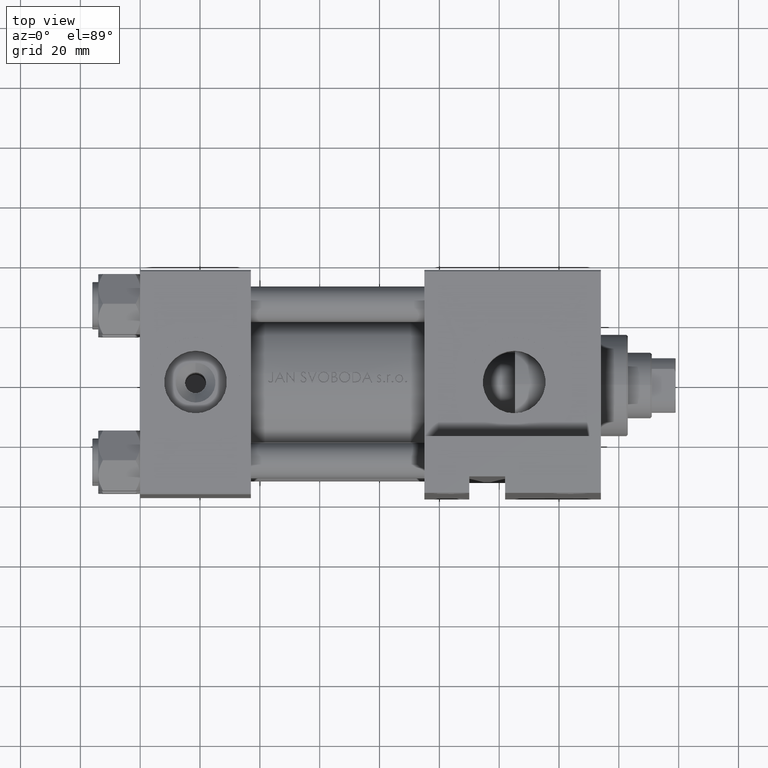
[diagram: clean part render]
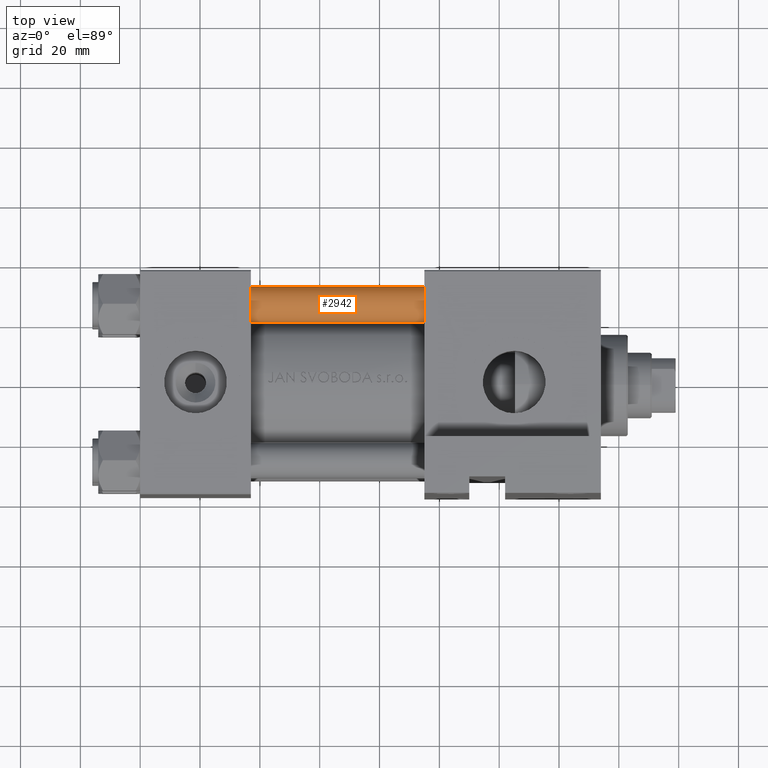
[diagram: same view with one face highlighted and labeled with its STEP entity id]
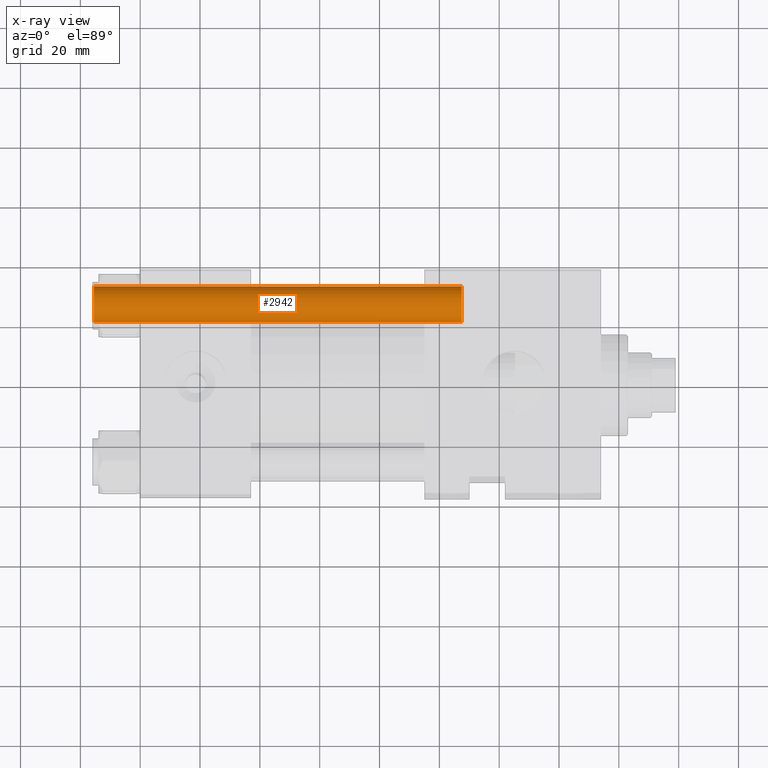
[diagram: x-ray of the same camera — body ghosted, the highlighted face saturated]
A machine part, top view. The second image highlights one B-rep face of the part: STEP entity #2942.
The next image is the same camera in x-ray: the body ghosted, the highlighted face saturated — about 0% of this face is hidden behind the body in this view.
In plain terms, the highlighted cylindrical surface (edge-blend (fillet) strip) has radius 6 mm, axis along (1, -0, 0).
Its self-contained STEP definition (entity closure, byte-faithful):
#202 = VECTOR ( 'NONE', #33020, 1000.000000000000000 ) ;
#2630 = LINE ( 'NONE', #17718, #202 ) ;
#2942 = ADVANCED_FACE ( 'NONE', ( #26237 ), #30513, .T. ) ;
#4841 = CARTESIAN_POINT ( 'NONE',  ( 0.000000000000000000, 0.000000000000000000, 123.5000000000000426 ) ) ;
#8397 = EDGE_CURVE ( 'NONE', #27512, #25775, #8506, .T. ) ;
#8506 = CIRCLE ( 'NONE', #43792, 6.000000000000000888 ) ;
#11180 = CARTESIAN_POINT ( 'NONE',  ( 0.000000000000000000, 0.000000000000000000, 124.0000000000000000 ) ) ;
#11444 = CARTESIAN_POINT ( 'NONE',  ( 0.000000000000000000, 0.000000000000000000, 0.4999999999999865663 ) ) ;
#11683 = DIRECTION ( 'NONE',  ( -0.000000000000000000, -0.000000000000000000, -1.000000000000000000 ) ) ;
#13597 = CIRCLE ( 'NONE', #34441, 6.000000000000000888 ) ;
#15914 = DIRECTION ( 'NONE',  ( 1.000000000000000000, 0.000000000000000000, 0.000000000000000000 ) ) ;
#16319 = ORIENTED_EDGE ( 'NONE', *, *, #23638, .T. ) ;
#17214 = VERTEX_POINT ( 'NONE', #22162 ) ;
#17718 = CARTESIAN_POINT ( 'NONE',  ( 6.000000000000000888, 7.347880794884120722E-16, 124.0000000000000000 ) ) ;
#20885 = EDGE_CURVE ( 'NONE', #17214, #28346, #13597, .T. ) ;
#22162 = CARTESIAN_POINT ( 'NONE',  ( -6.000000000000000888, 0.000000000000000000, 0.4999999999999865663 ) ) ;
#22941 = DIRECTION ( 'NONE',  ( 0.000000000000000000, 0.000000000000000000, -1.000000000000000000 ) ) ;
#23638 = EDGE_CURVE ( 'NONE', #25775, #17214, #25618, .T. ) ;
#25618 = LINE ( 'NONE', #37935, #30496 ) ;
#25775 = VERTEX_POINT ( 'NONE', #41723 ) ;
#26237 = FACE_OUTER_BOUND ( 'NONE', #34374, .T. ) ;
#26362 = DIRECTION ( 'NONE',  ( -0.000000000000000000, -0.000000000000000000, -1.000000000000000000 ) ) ;
#26993 = CARTESIAN_POINT ( 'NONE',  ( 6.000000000000000888, 7.347880794884120722E-16, 123.5000000000000426 ) ) ;
#27512 = VERTEX_POINT ( 'NONE', #26993 ) ;
#28254 = ORIENTED_EDGE ( 'NONE', *, *, #32000, .F. ) ;
#28346 = VERTEX_POINT ( 'NONE', #37267 ) ;
#30496 = VECTOR ( 'NONE', #26362, 1000.000000000000000 ) ;
#30513 = CYLINDRICAL_SURFACE ( 'NONE', #32984, 6.000000000000000888 ) ;
#32000 = EDGE_CURVE ( 'NONE', #27512, #28346, #2630, .T. ) ;
#32984 = AXIS2_PLACEMENT_3D ( 'NONE', #11180, #11683, #42319 ) ;
#33020 = DIRECTION ( 'NONE',  ( -0.000000000000000000, -0.000000000000000000, -1.000000000000000000 ) ) ;
#34286 = DIRECTION ( 'NONE',  ( 1.000000000000000000, 0.000000000000000000, 0.000000000000000000 ) ) ;
#34374 = EDGE_LOOP ( 'NONE', ( #28254, #48455, #16319, #34643 ) ) ;
#34441 = AXIS2_PLACEMENT_3D ( 'NONE', #11444, #37571, #34286 ) ;
#34643 = ORIENTED_EDGE ( 'NONE', *, *, #20885, .T. ) ;
#37267 = CARTESIAN_POINT ( 'NONE',  ( 6.000000000000000888, 7.347880794884120722E-16, 0.4999999999999865663 ) ) ;
#37571 = DIRECTION ( 'NONE',  ( -0.000000000000000000, -0.000000000000000000, 1.000000000000000000 ) ) ;
#37935 = CARTESIAN_POINT ( 'NONE',  ( -6.000000000000000888, 0.000000000000000000, 124.0000000000000000 ) ) ;
#41723 = CARTESIAN_POINT ( 'NONE',  ( -6.000000000000000888, 0.000000000000000000, 123.5000000000000426 ) ) ;
#42319 = DIRECTION ( 'NONE',  ( -1.000000000000000000, 0.000000000000000000, 0.000000000000000000 ) ) ;
#43792 = AXIS2_PLACEMENT_3D ( 'NONE', #4841, #22941, #15914 ) ;
#48455 = ORIENTED_EDGE ( 'NONE', *, *, #8397, .T. ) ;